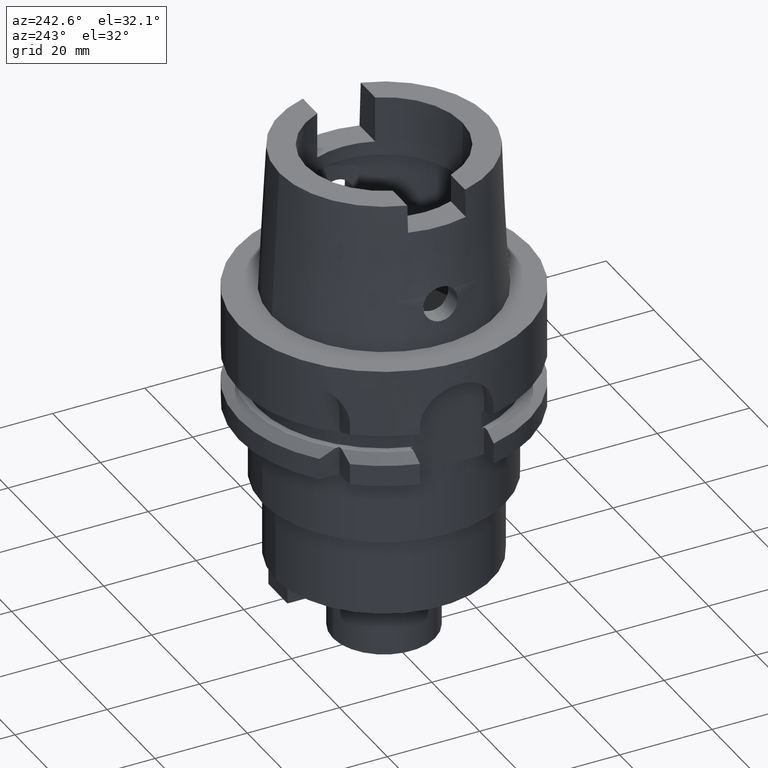
[diagram: clean part render]
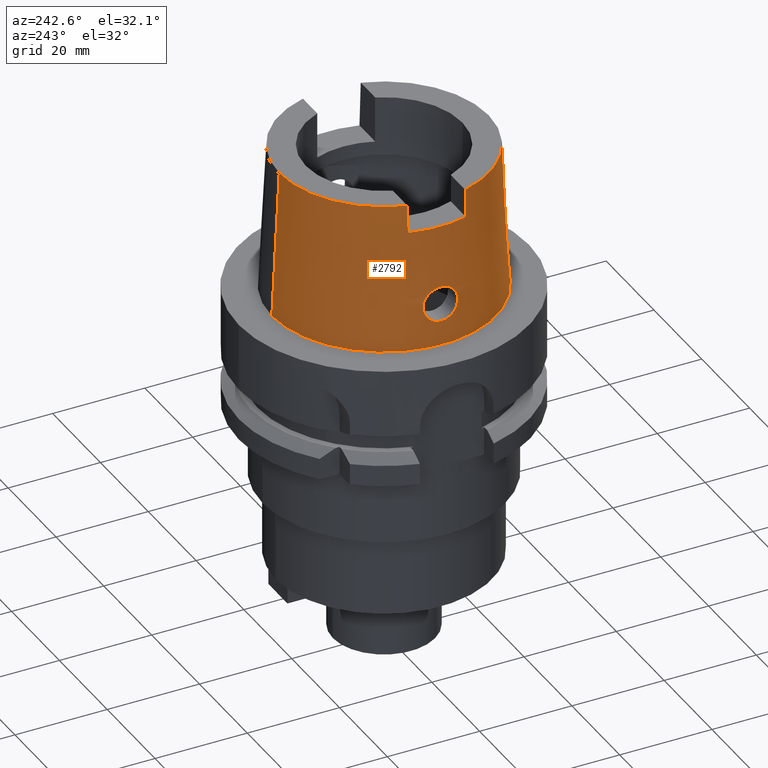
[diagram: same view with one face highlighted and labeled with its STEP entity id]
A machine part, auxiliary view. The second image highlights one B-rep face of the part: STEP entity #2792.
In plain terms, the highlighted conical surface has half-angle 2.862 deg.
Its self-contained STEP definition (entity closure, byte-faithful):
#83=CARTESIAN_POINT('',(0.E0,1.420590287011E-14,3.2E1));
#84=DIRECTION('',(0.E0,0.E0,-1.E0));
#85=DIRECTION('',(-9.611492277717E-1,2.760292773492E-1,0.E0));
#86=AXIS2_PLACEMENT_3D('',#83,#84,#85);
#396=CARTESIAN_POINT('',(-2.183248717673E1,6.27E0,3.2E1));
#397=CARTESIAN_POINT('',(-2.186717206529E1,6.27E0,3.133327503497E1));
#398=CARTESIAN_POINT('',(-2.193652349223E1,6.27E0,2.999986376693E1));
#399=CARTESIAN_POINT('',(-2.204051301399E1,6.27E0,2.799986375668E1));
#400=CARTESIAN_POINT('',(-2.210981442606E1,6.27E0,2.666660835394E1));
#401=CARTESIAN_POINT('',(-2.214445626683E1,6.27E0,2.6E1));
#406=CARTESIAN_POINT('',(-2.214445626683E1,-6.27E0,2.6E1));
#407=CARTESIAN_POINT('',(-2.210981442606E1,-6.27E0,2.666660835393E1));
#408=CARTESIAN_POINT('',(-2.204051301399E1,-6.27E0,2.799986375667E1));
#409=CARTESIAN_POINT('',(-2.193652349223E1,-6.27E0,2.999986376692E1));
#410=CARTESIAN_POINT('',(-2.186717206529E1,-6.27E0,3.133327503497E1));
#411=CARTESIAN_POINT('',(-2.183248717673E1,-6.27E0,3.2E1));
#416=DIRECTION('',(0.E0,-4.993926899646E-2,-9.987522562738E-1));
#417=VECTOR('',#416,3.203997768114E1);
#418=CARTESIAN_POINT('',(0.E0,-2.271498175923E1,3.2E1));
#419=LINE('',#418,#417);
#423=CARTESIAN_POINT('',(-2.405252611747E1,0.E0,5.25E0));
#424=CARTESIAN_POINT('',(-2.405252611747E1,-3.241157242558E-1,5.25E0));
#425=CARTESIAN_POINT('',(-2.403485907846E1,-9.732747046581E-1,
5.334795493145E0));
#426=CARTESIAN_POINT('',(-2.396110342032E1,-1.881310584883E0,5.706686125005E0));
#427=CARTESIAN_POINT('',(-2.385405601864E1,-2.671711853367E0,6.307049756264E0));
#428=CARTESIAN_POINT('',(-2.373660558906E1,-3.279743670887E0,7.093452047269E0));
#429=CARTESIAN_POINT('',(-2.363237077944E1,-3.663783972327E0,8.015444553180E0));
#430=CARTESIAN_POINT('',(-2.356153270208E1,-3.793004627431E0,9.001050998574E0));
#431=CARTESIAN_POINT('',(-2.353287095809E1,-3.664197490060E0,9.979231169230E0));
#432=CARTESIAN_POINT('',(-2.354368597292E1,-3.287227014677E0,1.089166216684E1));
#433=CARTESIAN_POINT('',(-2.358180472698E1,-2.689665065645E0,1.167427784332E1));
#434=CARTESIAN_POINT('',(-2.362961156093E1,-1.903802800617E0,1.228124178503E1));
#435=CARTESIAN_POINT('',(-2.366789503181E1,-9.847186590179E-1,
1.266341275855E1));
#436=CARTESIAN_POINT('',(-2.367751368058E1,-3.281844637706E-1,1.275E1));
#437=CARTESIAN_POINT('',(-2.367751368058E1,0.E0,1.275E1));
#442=CARTESIAN_POINT('',(-2.367751368058E1,0.E0,1.275E1));
#443=CARTESIAN_POINT('',(-2.367751368058E1,3.271075640677E-1,1.275E1));
#444=CARTESIAN_POINT('',(-2.366795401394E1,9.820986360602E-1,1.266393144991E1));
#445=CARTESIAN_POINT('',(-2.362979875367E1,1.900358417935E0,1.228324769127E1));
#446=CARTESIAN_POINT('',(-2.358187840212E1,2.688611665376E0,1.167584775354E1));
#447=CARTESIAN_POINT('',(-2.354358948202E1,3.288683827131E0,1.088960648941E1));
#448=CARTESIAN_POINT('',(-2.353293339282E1,3.664392838702E0,9.977242127641E0));
#449=CARTESIAN_POINT('',(-2.356143130566E1,3.792227303340E0,9.005594125507E0));
#450=CARTESIAN_POINT('',(-2.363116016293E1,3.666678438448E0,8.030011197027E0));
#451=CARTESIAN_POINT('',(-2.373388793436E1,3.291292938383E0,7.114385293002E0));
#452=CARTESIAN_POINT('',(-2.385126634788E1,2.688925934932E0,6.323645219493E0));
#453=CARTESIAN_POINT('',(-2.395980263731E1,1.895005452798E0,5.713295701132E0));
#454=CARTESIAN_POINT('',(-2.403486152121E1,9.761053976825E-1,5.334745159199E0));
#455=CARTESIAN_POINT('',(-2.405252611747E1,3.244982457821E-1,5.25E0));
#456=CARTESIAN_POINT('',(-2.405252611747E1,0.E0,5.25E0));
#476=CARTESIAN_POINT('',(0.E0,1.420590287011E-14,2.6E1));
#477=DIRECTION('',(0.E0,0.E0,-1.E0));
#478=DIRECTION('',(-9.621752876155E-1,-2.724311213903E-1,0.E0));
#479=AXIS2_PLACEMENT_3D('',#476,#477,#478);
#522=CARTESIAN_POINT('',(0.E0,1.420590287011E-14,3.2E1));
#523=DIRECTION('',(0.E0,0.E0,-1.E0));
#524=DIRECTION('',(0.E0,-1.E0,0.E0));
#525=AXIS2_PLACEMENT_3D('',#522,#523,#524);
#550=DIRECTION('',(0.E0,4.993926899646E-2,-9.987522562738E-1));
#551=VECTOR('',#550,3.203997768114E1);
#552=CARTESIAN_POINT('',(0.E0,2.271498175923E1,3.2E1));
#553=LINE('',#552,#551);
#619=CARTESIAN_POINT('',(0.E0,1.420590287011E-14,9.094947017729E-13));
#620=DIRECTION('',(0.E0,0.E0,1.E0));
#621=DIRECTION('',(0.E0,1.E0,0.E0));
#622=AXIS2_PLACEMENT_3D('',#619,#620,#621);
#2183=CARTESIAN_POINT('',(-2.183248717673E1,6.27E0,3.2E1));
#2185=VERTEX_POINT('',#2183);
#2186=CARTESIAN_POINT('',(0.E0,2.271498175923E1,3.2E1));
#2187=VERTEX_POINT('',#2186);
#2189=CARTESIAN_POINT('',(-2.183248717673E1,-6.27E0,3.2E1));
#2191=VERTEX_POINT('',#2189);
#2192=CARTESIAN_POINT('',(0.E0,-2.271498175923E1,3.2E1));
#2193=VERTEX_POINT('',#2192);
#2196=CARTESIAN_POINT('',(-2.214445626683E1,6.27E0,2.6E1));
#2197=VERTEX_POINT('',#2196);
#2217=CARTESIAN_POINT('',(-2.367751368058E1,0.E0,1.275E1));
#2218=VERTEX_POINT('',#2217);
#2219=VERTEX_POINT('',#423);
#2227=CARTESIAN_POINT('',(0.E0,2.431503482329E1,4.547473508865E-13));
#2228=VERTEX_POINT('',#2227);
#2229=CARTESIAN_POINT('',(0.E0,-2.431503482329E1,9.094947017729E-13));
#2230=VERTEX_POINT('',#2229);
#2231=CARTESIAN_POINT('',(-2.214445626683E1,-6.27E0,2.6E1));
#2232=VERTEX_POINT('',#2231);
#2767=CARTESIAN_POINT('',(0.E0,1.420590287011E-14,1.6E1));
#2768=DIRECTION('',(0.E0,0.E0,-1.E0));
#2769=DIRECTION('',(0.E0,-1.E0,0.E0));
#2770=AXIS2_PLACEMENT_3D('',#2767,#2768,#2769);
#2771=CONICAL_SURFACE('',#2770,2.351500829126E1,2.8625E0);
#2772=ORIENTED_EDGE('',*,*,#2590,.T.);
#2774=ORIENTED_EDGE('',*,*,#2773,.F.);
#2776=ORIENTED_EDGE('',*,*,#2775,.T.);
#2778=ORIENTED_EDGE('',*,*,#2777,.F.);
#2780=ORIENTED_EDGE('',*,*,#2779,.T.);
#2782=ORIENTED_EDGE('',*,*,#2781,.F.);
#2784=ORIENTED_EDGE('',*,*,#2783,.F.);
#2785=ORIENTED_EDGE('',*,*,#2569,.F.);
#2786=EDGE_LOOP('',(#2772,#2774,#2776,#2778,#2780,#2782,#2784,#2785));
#2787=FACE_OUTER_BOUND('',#2786,.F.);
#2788=ORIENTED_EDGE('',*,*,#2729,.T.);
#2789=ORIENTED_EDGE('',*,*,#2761,.T.);
#2790=EDGE_LOOP('',(#2788,#2789));
#2791=FACE_BOUND('',#2790,.F.);
#87=CIRCLE('',#86,2.271498175923E1);
#402=B_SPLINE_CURVE_WITH_KNOTS('',3,(#396,#397,#398,#399,#400,#401),
.UNSPECIFIED.,.F.,.F.,(4,1,1,4),(0.E0,3.333333333333E-1,6.666666666667E-1,1.E0),
.UNSPECIFIED.);
#412=B_SPLINE_CURVE_WITH_KNOTS('',3,(#406,#407,#408,#409,#410,#411),
.UNSPECIFIED.,.F.,.F.,(4,1,1,4),(0.E0,3.333333333333E-1,6.666666666667E-1,1.E0),
.UNSPECIFIED.);
#438=B_SPLINE_CURVE_WITH_KNOTS('',3,(#423,#424,#425,#426,#427,#428,#429,#430,
#431,#432,#433,#434,#435,#436,#437),.UNSPECIFIED.,.F.,.F.,(4,1,1,1,1,1,1,1,1,1,
1,1,4),(0.E0,8.333333333333E-2,1.666666666667E-1,2.5E-1,3.333333333333E-1,
4.166666666667E-1,5.E-1,5.833333333333E-1,6.666666666667E-1,7.5E-1,
8.333333333333E-1,9.166666666667E-1,1.E0),.UNSPECIFIED.);
#457=B_SPLINE_CURVE_WITH_KNOTS('',3,(#442,#443,#444,#445,#446,#447,#448,#449,
#450,#451,#452,#453,#454,#455,#456),.UNSPECIFIED.,.F.,.F.,(4,1,1,1,1,1,1,1,1,1,
1,1,4),(0.E0,8.333333333333E-2,1.666666666667E-1,2.5E-1,3.333333333333E-1,
4.166666666667E-1,5.E-1,5.833333333333E-1,6.666666666667E-1,7.5E-1,
8.333333333333E-1,9.166666666667E-1,1.E0),.UNSPECIFIED.);
#480=CIRCLE('',#479,2.301499170874E1);
#526=CIRCLE('',#525,2.271498175923E1);
#623=CIRCLE('',#622,2.431503482329E1);
#2569=EDGE_CURVE('',#2185,#2187,#87,.T.);
#2590=EDGE_CURVE('',#2185,#2197,#402,.T.);
#2729=EDGE_CURVE('',#2219,#2218,#438,.T.);
#2761=EDGE_CURVE('',#2218,#2219,#457,.T.);
#2773=EDGE_CURVE('',#2232,#2197,#480,.T.);
#2775=EDGE_CURVE('',#2232,#2191,#412,.T.);
#2777=EDGE_CURVE('',#2193,#2191,#526,.T.);
#2779=EDGE_CURVE('',#2193,#2230,#419,.T.);
#2781=EDGE_CURVE('',#2228,#2230,#623,.T.);
#2783=EDGE_CURVE('',#2187,#2228,#553,.T.);
#2792=ADVANCED_FACE('',(#2787,#2791),#2771,.T.);